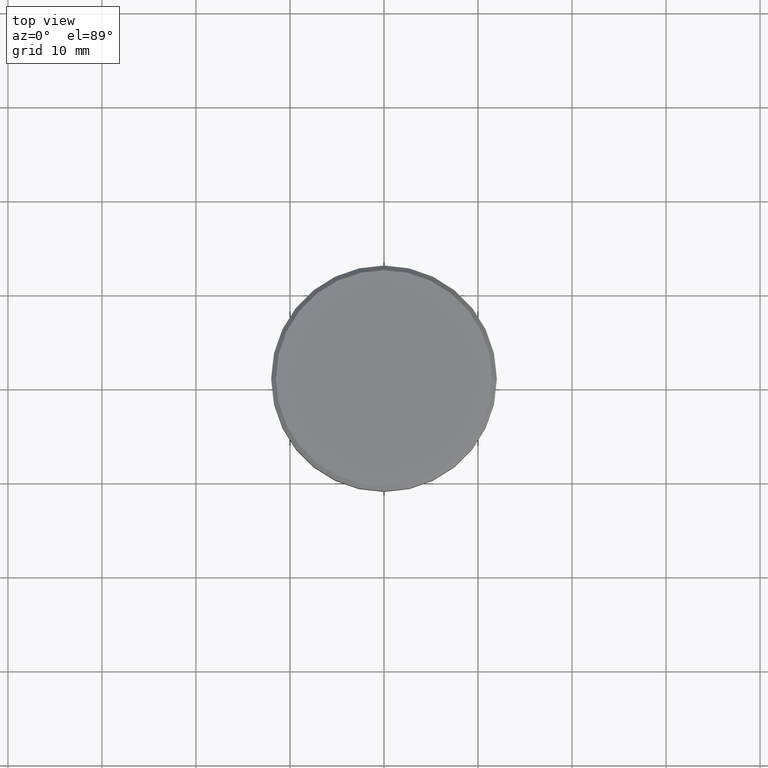
[diagram: clean part render]
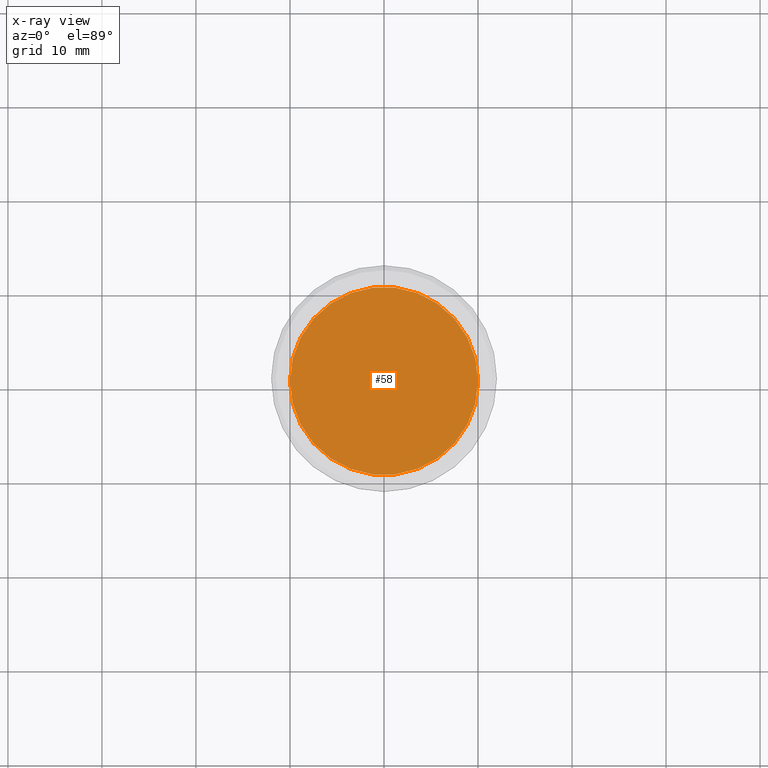
[diagram: x-ray — body ghosted, one internal face saturated and labeled with its STEP entity id]
A machine part, top view, then the same camera in x-ray: the body is ghosted and one INTERNAL B-rep face — a face not visible from any outside direction — is saturated and labeled: STEP entity #58.
In plain terms, the highlighted planar face has unit normal (0, 0, -1).
Its self-contained STEP definition (entity closure, byte-faithful):
#4 = DIRECTION ( 'NONE',  ( -0.000000000000000000, -0.000000000000000000, 1.000000000000000000 ) ) ;
#50 = FACE_OUTER_BOUND ( 'NONE', #447, .T. ) ;
#52 = CARTESIAN_POINT ( 'NONE',  ( -10.00000000000000178, 1.224646799147353454E-15, -17.50000000000000000 ) ) ;
#58 = ADVANCED_FACE ( 'NONE', ( #50 ), #303, .F. ) ;
#183 = CIRCLE ( 'NONE', #309, 10.00000000000000000 ) ;
#189 = ORIENTED_EDGE ( 'NONE', *, *, #377, .T. ) ;
#254 = EDGE_CURVE ( 'NONE', #320, #918, #183, .T. ) ;
#291 = AXIS2_PLACEMENT_3D ( 'NONE', #452, #4, #938 ) ;
#303 = PLANE ( 'NONE',  #357 ) ;
#309 = AXIS2_PLACEMENT_3D ( 'NONE', #404, #332, #978 ) ;
#320 = VERTEX_POINT ( 'NONE', #430 ) ;
#332 = DIRECTION ( 'NONE',  ( -0.000000000000000000, -0.000000000000000000, 1.000000000000000000 ) ) ;
#357 = AXIS2_PLACEMENT_3D ( 'NONE', #615, #931, #925 ) ;
#377 = EDGE_CURVE ( 'NONE', #918, #320, #1022, .T. ) ;
#404 = CARTESIAN_POINT ( 'NONE',  ( 0.000000000000000000, 0.000000000000000000, -17.50000000000000000 ) ) ;
#430 = CARTESIAN_POINT ( 'NONE',  ( 10.00000000000000000, 0.000000000000000000, -17.50000000000000000 ) ) ;
#447 = EDGE_LOOP ( 'NONE', ( #590, #189 ) ) ;
#452 = CARTESIAN_POINT ( 'NONE',  ( 0.000000000000000000, 0.000000000000000000, -17.50000000000000000 ) ) ;
#590 = ORIENTED_EDGE ( 'NONE', *, *, #254, .T. ) ;
#615 = CARTESIAN_POINT ( 'NONE',  ( 0.000000000000000000, -3.469446951953614189E-15, -17.50000000000000000 ) ) ;
#918 = VERTEX_POINT ( 'NONE', #52 ) ;
#925 = DIRECTION ( 'NONE',  ( -1.000000000000000000, 0.000000000000000000, -0.000000000000000000 ) ) ;
#931 = DIRECTION ( 'NONE',  ( 0.000000000000000000, 0.000000000000000000, -1.000000000000000000 ) ) ;
#938 = DIRECTION ( 'NONE',  ( 1.000000000000000000, 0.000000000000000000, 0.000000000000000000 ) ) ;
#978 = DIRECTION ( 'NONE',  ( 1.000000000000000000, 0.000000000000000000, 0.000000000000000000 ) ) ;
#1022 = CIRCLE ( 'NONE', #291, 10.00000000000000000 ) ;